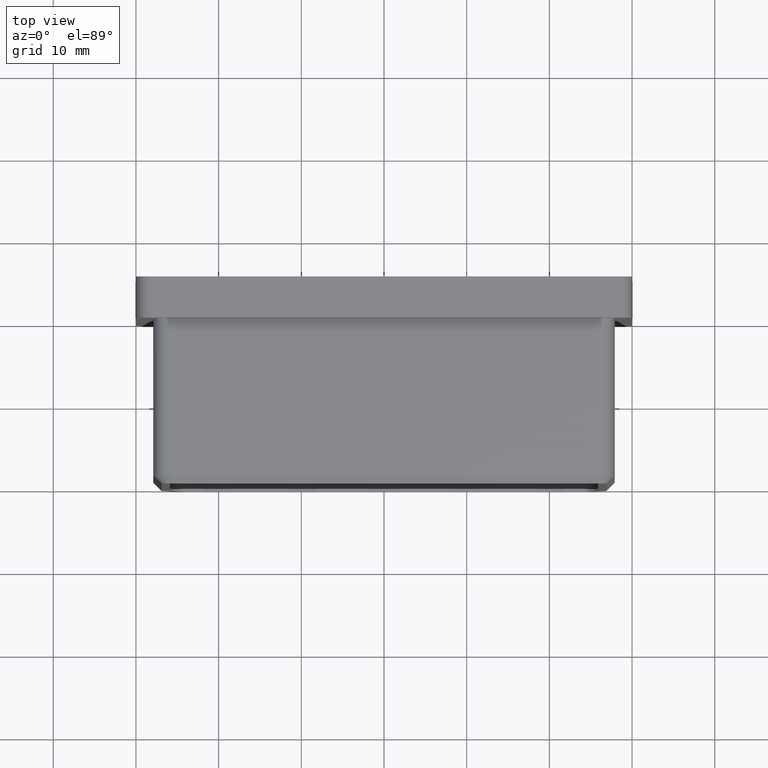
[diagram: clean part render]
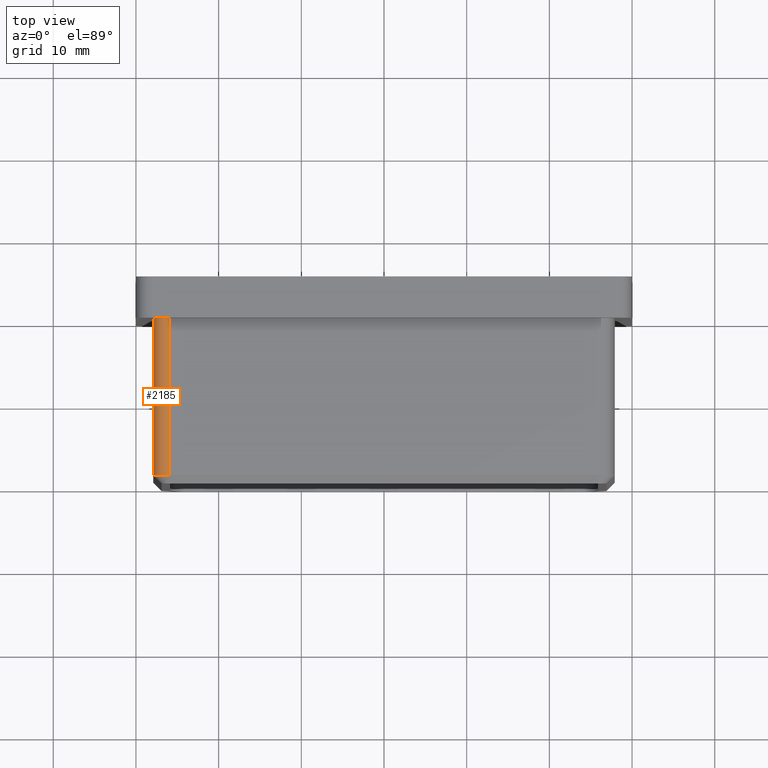
[diagram: same view with one face highlighted and labeled with its STEP entity id]
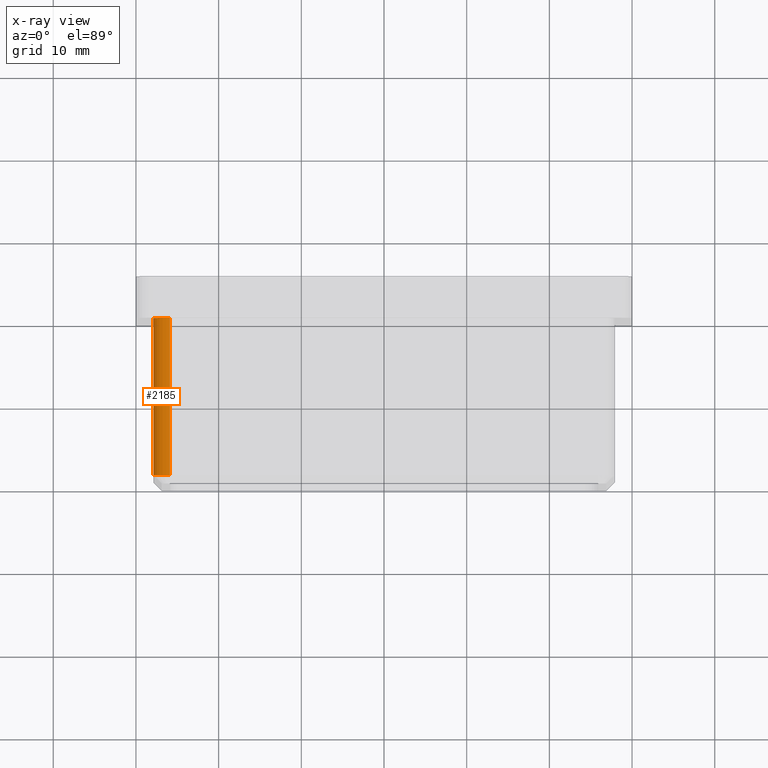
[diagram: x-ray of the same camera — body ghosted, the highlighted face saturated]
A machine part, top view. The second image highlights one B-rep face of the part: STEP entity #2185.
The next image is the same camera in x-ray: the body ghosted, the highlighted face saturated — about 0% of this face is hidden behind the body in this view.
In plain terms, the highlighted cylindrical surface (edge-blend (fillet) strip) has radius 2 mm, axis along (-0, 1, 0).
Its self-contained STEP definition (entity closure, byte-faithful):
#72 = CYLINDRICAL_SURFACE ( 'NONE', #10068, 2.000000000000001800 ) ;
#104 = VERTEX_POINT ( 'NONE', #10821 ) ;
#265 = AXIS2_PLACEMENT_3D ( 'NONE', #625, #8965, #12574 ) ;
#528 = DIRECTION ( 'NONE',  ( -0.0000000000000000000, 1.000000000000000000, 0.0000000000000000000 ) ) ;
#625 = CARTESIAN_POINT ( 'NONE',  ( -25.89999999999999900, -19.00000000000000000, 25.89999999999999900 ) ) ;
#1917 = CARTESIAN_POINT ( 'NONE',  ( -25.89999999999999900, 0.0000000000000000000, 27.90000000000000200 ) ) ;
#1941 = ORIENTED_EDGE ( 'NONE', *, *, #6609, .F. ) ;
#2185 = ADVANCED_FACE ( 'NONE', ( #8787 ), #72, .T. ) ;
#2895 = DIRECTION ( 'NONE',  ( 0.0000000000000000000, 0.0000000000000000000, 1.000000000000000000 ) ) ;
#3242 = CARTESIAN_POINT ( 'NONE',  ( -25.89999999999999900, -20.00000000000000000, 27.90000000000000200 ) ) ;
#3982 = EDGE_LOOP ( 'NONE', ( #10232, #8158, #15352, #1941 ) ) ;
#5526 = CARTESIAN_POINT ( 'NONE',  ( -27.90000000000000200, -19.00000000000000000, 25.89999999999999900 ) ) ;
#5622 = DIRECTION ( 'NONE',  ( -0.0000000000000000000, 1.000000000000000000, 0.0000000000000000000 ) ) ;
#6609 = EDGE_CURVE ( 'NONE', #12774, #10036, #11744, .T. ) ;
#6851 = DIRECTION ( 'NONE',  ( -0.0000000000000000000, -1.000000000000000000, -0.0000000000000000000 ) ) ;
#7007 = LINE ( 'NONE', #10453, #13091 ) ;
#8158 = ORIENTED_EDGE ( 'NONE', *, *, #11967, .T. ) ;
#8310 = EDGE_CURVE ( 'NONE', #10036, #104, #9784, .T. ) ;
#8787 = FACE_OUTER_BOUND ( 'NONE', #3982, .T. ) ;
#8965 = DIRECTION ( 'NONE',  ( 0.0000000000000000000, 1.000000000000000000, 0.0000000000000000000 ) ) ;
#9784 = LINE ( 'NONE', #3242, #12390 ) ;
#10036 = VERTEX_POINT ( 'NONE', #1917 ) ;
#10068 = AXIS2_PLACEMENT_3D ( 'NONE', #12430, #528, #2895 ) ;
#10232 = ORIENTED_EDGE ( 'NONE', *, *, #11508, .F. ) ;
#10453 = CARTESIAN_POINT ( 'NONE',  ( -27.90000000000000200, -20.00000000000000000, 25.89999999999999900 ) ) ;
#10821 = CARTESIAN_POINT ( 'NONE',  ( -25.89999999999999900, -19.00000000000000000, 27.90000000000000200 ) ) ;
#11028 = CIRCLE ( 'NONE', #265, 2.000000000000001800 ) ;
#11508 = EDGE_CURVE ( 'NONE', #12040, #12774, #7007, .T. ) ;
#11744 = CIRCLE ( 'NONE', #13172, 2.000000000000001800 ) ;
#11967 = EDGE_CURVE ( 'NONE', #12040, #104, #11028, .T. ) ;
#12040 = VERTEX_POINT ( 'NONE', #5526 ) ;
#12390 = VECTOR ( 'NONE', #6851, 1000.000000000000000 ) ;
#12430 = CARTESIAN_POINT ( 'NONE',  ( -25.89999999999999900, -20.00000000000000000, 25.89999999999999900 ) ) ;
#12574 = DIRECTION ( 'NONE',  ( 0.0000000000000000000, 0.0000000000000000000, -1.000000000000000000 ) ) ;
#12774 = VERTEX_POINT ( 'NONE', #13712 ) ;
#13091 = VECTOR ( 'NONE', #5622, 1000.000000000000000 ) ;
#13172 = AXIS2_PLACEMENT_3D ( 'NONE', #13804, #14946, #13866 ) ;
#13712 = CARTESIAN_POINT ( 'NONE',  ( -27.90000000000000200, 0.0000000000000000000, 25.89999999999999900 ) ) ;
#13804 = CARTESIAN_POINT ( 'NONE',  ( -25.89999999999999900, 0.0000000000000000000, 25.89999999999999900 ) ) ;
#13866 = DIRECTION ( 'NONE',  ( 0.0000000000000000000, 0.0000000000000000000, 1.000000000000000000 ) ) ;
#14946 = DIRECTION ( 'NONE',  ( 0.0000000000000000000, 1.000000000000000000, 0.0000000000000000000 ) ) ;
#15352 = ORIENTED_EDGE ( 'NONE', *, *, #8310, .F. ) ;